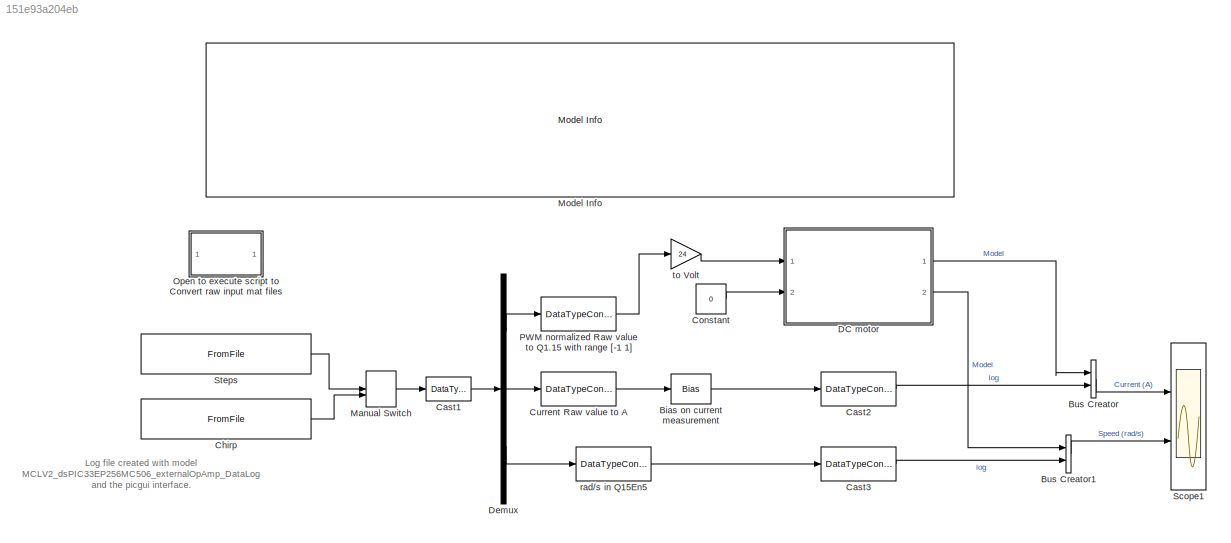
MODEL slx_151e93a204eb
KIND model
CONFIG AbsTol = auto
CONFIG EnableMultiTasking = off
CONFIG FixedStep = .00005
CONFIG MaxStep = auto
CONFIG MinStep = auto
CONFIG RelTol = 1e-3
CONFIG SampleTimeConstraint = Unconstrained
CONFIG Solver = FixedStepAuto
CONFIG SolverName = FixedStepAuto
CONFIG StartTime = 0.0
CONFIG StopTime = 60
BLOCK [Bias] Bias on current measurement
  Bias = 0.2
BLOCK [BusCreator] Bus Creator
  DisplayOption = bar
  InheritFromInputs = on
  Inputs = 2
  Ports = [2, 1]
BLOCK [BusCreator] Bus Creator1
  DisplayOption = bar
  InheritFromInputs = on
  Inputs = 2
  Ports = [2, 1]
BLOCK [DataTypeConversion] Cast1
  OutDataTypeStr = int16
  RndMeth = Floor
  SaturateOnIntegerOverflow = off
BLOCK [DataTypeConversion] Cast2
  OutDataTypeStr = double
  RndMeth = Floor
  SaturateOnIntegerOverflow = off
BLOCK [DataTypeConversion] Cast3
  OutDataTypeStr = double
  RndMeth = Floor
  SaturateOnIntegerOverflow = off
BLOCK [FromFile] Chirp
  FileName = Sim_2018_12_12_at_14h22_07s.mat
  SampleTime = .00005
BLOCK [Constant] Constant
  Value = 0
BLOCK [DataTypeConversion] Current Raw value to A
  ConvertRealWorld = Stored Integer (SI)
  OutDataTypeStr = fixdt(1,16,4.4/32768,0)
  RndMeth = Floor
  SaturateOnIntegerOverflow = off
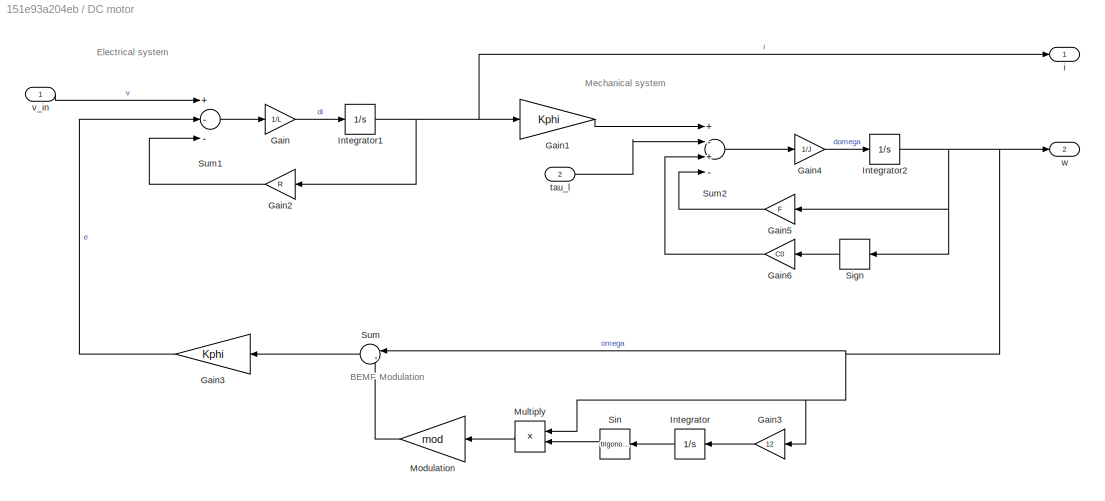
BLOCK [SubSystem] DC motor
  Ports = [2, 2]
  RequestExecContextInheritance = off
BLOCK [Gain] DC motor/Gain
  Gain = 1/L
  OutDataTypeStr = Inherit: Inherit via internal rule
  ParamDataTypeStr = Inherit: Inherit via internal rule
  SaturateOnIntegerOverflow = off
BLOCK [Gain] DC motor/Gain1
  Gain = Kphi
  OutDataTypeStr = Inherit: Inherit via internal rule
  ParamDataTypeStr = Inherit: Inherit via internal rule
  SaturateOnIntegerOverflow = off
BLOCK [Gain] DC motor/Gain2
  Gain = R
  OutDataTypeStr = Inherit: Inherit via internal rule
  ParamDataTypeStr = Inherit: Inherit via internal rule
  SaturateOnIntegerOverflow = off
BLOCK [Gain] DC motor/Gain3
  Gain = 12
  OutDataTypeStr = Inherit: Inherit via internal rule
  ParamDataTypeStr = Inherit: Inherit via internal rule
  SaturateOnIntegerOverflow = off
BLOCK [Gain] DC motor/Gain3  
  Gain = Kphi
  OutDataTypeStr = Inherit: Inherit via internal rule
  ParamDataTypeStr = Inherit: Inherit via internal rule
  SaturateOnIntegerOverflow = off
BLOCK [Gain] DC motor/Gain4
  Gain = 1/J
  OutDataTypeStr = Inherit: Inherit via internal rule
  ParamDataTypeStr = Inherit: Inherit via internal rule
  SaturateOnIntegerOverflow = off
BLOCK [Gain] DC motor/Gain5
  Gain = F
  OutDataTypeStr = Inherit: Inherit via internal rule
  ParamDataTypeStr = Inherit: Inherit via internal rule
  SaturateOnIntegerOverflow = off
BLOCK [Gain] DC motor/Gain6
  Gain = C0
  OutDataTypeStr = Inherit: Inherit via internal rule
  ParamDataTypeStr = Inherit: Inherit via internal rule
  SaturateOnIntegerOverflow = off
BLOCK [Integrator] DC motor/Integrator
  Ports = [1, 1]
  WrapState = on
BLOCK [Integrator] DC motor/Integrator1
  Ports = [1, 1]
BLOCK [Integrator] DC motor/Integrator2
  Ports = [1, 1]
BLOCK [Gain] DC motor/Modulation
  Gain = mod
  OutDataTypeStr = Inherit: Inherit via internal rule
  ParamDataTypeStr = Inherit: Inherit via internal rule
  SaturateOnIntegerOverflow = off
BLOCK [Product] DC motor/Multiply
  InputSameDT = off
  OutDataTypeStr = Inherit: Inherit via internal rule
  Ports = [2, 1]
  RndMeth = Floor
  SaturateOnIntegerOverflow = off
BLOCK [Signum] DC motor/Sign
BLOCK [Trigonometry] DC motor/Sin
  Ports = [1, 1]
BLOCK [Sum] DC motor/Sum
  IconShape = round
  InputSameDT = off
  Inputs = |++
  OutDataTypeStr = Inherit: Inherit via internal rule
  Ports = [2, 1]
  SaturateOnIntegerOverflow = off
BLOCK [Sum] DC motor/Sum1
  InputSameDT = off
  Inputs = +--
  OutDataTypeStr = Inherit: Inherit via internal rule
  Ports = [3, 1]
  SaturateOnIntegerOverflow = off
BLOCK [Sum] DC motor/Sum2
  InputSameDT = off
  Inputs = +-+-
  OutDataTypeStr = Inherit: Inherit via internal rule
  Ports = [4, 1]
  SaturateOnIntegerOverflow = off
BLOCK [Outport] DC motor/i
  IconDisplay = Port number
BLOCK [Inport] DC motor/tau_l
  IconDisplay = Port number
  Port = 2
BLOCK [Inport] DC motor/v_in
  IconDisplay = Port number
  SampleTime = 0
BLOCK [Outport] DC motor/w
  IconDisplay = Port number
  Port = 2
BLOCK [Demux] Demux
  DisplayOption = bar
  Outputs = 3
  Ports = [1, 3]
BLOCK [ManualSwitch] Manual Switch
  CurrentSetting = 0
BLOCK [Reference] Model Info  REF=simulink/Model-Wide
Utilities/Model Info
  Ports = []
  SourceBlock = simulink/Model-Wide\nUtilities/Model Info
  SourceProductBaseCode = SL
  SourceProductName = Simulink
  SourceType = CMBlock
BLOCK [SubSystem] Open to execute script to Convert raw input mat files
  LoadFcn = sim2mat();
  OpenFcn = sim2mat();
  Ports = []
  RequestExecContextInheritance = off
BLOCK [DataTypeConversion] PWM normalized Raw value to Q1.15 with range [-1 1]
  ConvertRealWorld = Stored Integer (SI)
  OutDataTypeStr = fixdt(1,16,15)
  RndMeth = Floor
  SaturateOnIntegerOverflow = off
BLOCK [Scope] Scope1
  Floating = off
  NumInputPorts = 2
  Ports = [2]
  ScopeSpecificationString = Simulink.scopes.TimeScopeBlockCfg('CurrentConfiguration', extmgr.ConfigurationSet(extmgr.Configuration('Core','General UI',true),extmgr.Configuration('Core','Source UI',true),extmgr.Configuration('Sources','WiredSimulink',true,'DataLoggingVariableName','ScopeData1'),extmgr.Configuration('Visuals','Time Domain',true,'SerializedDisplays',{struct('MinYLimReal','-16.82205','MaxYLimReal','12.11304','YL...<+2179ch>
BLOCK [FromFile] Steps
  FileName = Sim_2018_12_12_at_14h19_56s.mat
  SampleTime = .00005
BLOCK [DataTypeConversion] rad//s in Q15En5
  ConvertRealWorld = Stored Integer (SI)
  OutDataTypeStr = fixdt(1,16,5)
  RndMeth = Floor
  SaturateOnIntegerOverflow = off
BLOCK [Gain] to Volt
  Gain = 24
  OutDataTypeStr = double
  ParamDataTypeStr = Inherit: Inherit via internal rule
  SaturateOnIntegerOverflow = off
ANNOTATION (root): Log file created with model MCLV2_dsPIC33EP256MC506_externalOpAmp_DataLog and the picgui interface.
ANNOTATION DC motor: BEMF Modulation
ANNOTATION DC motor: Electrical system
ANNOTATION DC motor: Mechanical system
LINE Bias on current measurement:1 -> Cast2:1
LINE Bus Creator1:1 -> Scope1:2
LINE Bus Creator:1 -> Scope1:1
LINE Cast1:1 -> Demux:1
LINE Cast2:1 -> Bus Creator:2
LINE Cast3:1 -> Bus Creator1:2
LINE Chirp:1 -> Manual Switch:2
LINE Constant:1 -> DC motor:2
LINE Current Raw value to A:1 -> Bias on current measurement:1
LINE DC motor/Gain1:1 -> DC motor/Sum2:1
LINE DC motor/Gain2:1 -> DC motor/Sum1:3
LINE DC motor/Gain3  :1 -> DC motor/Sum1:2
LINE DC motor/Gain3:1 -> DC motor/Integrator:1
LINE DC motor/Gain4:1 -> DC motor/Integrator2:1
LINE DC motor/Gain5:1 -> DC motor/Sum2:4
LINE DC motor/Gain6:1 -> DC motor/Sum2:3
LINE DC motor/Gain:1 -> DC motor/Integrator1:1
NET DC motor/Integrator1:1 -> DC motor/Gain1:1, DC motor/Gain2:1, DC motor/i:1
NET DC motor/Integrator2:1 -> DC motor/Gain3:1, DC motor/Gain5:1, DC motor/Multiply:1, DC motor/Sign:1, DC motor/Sum:1, DC motor/w:1
LINE DC motor/Integrator:1 -> DC motor/Sin:1
LINE DC motor/Modulation:1 -> DC motor/Sum:2
LINE DC motor/Multiply:1 -> DC motor/Modulation:1
LINE DC motor/Sign:1 -> DC motor/Gain6:1
LINE DC motor/Sin:1 -> DC motor/Multiply:2
LINE DC motor/Sum1:1 -> DC motor/Gain:1
LINE DC motor/Sum2:1 -> DC motor/Gain4:1
LINE DC motor/Sum:1 -> DC motor/Gain3  :1
LINE DC motor/tau_l:1 -> DC motor/Sum2:2
LINE DC motor/v_in:1 -> DC motor/Sum1:1
LINE DC motor:1 -> Bus Creator:1
LINE DC motor:2 -> Bus Creator1:1
LINE Demux:1 -> PWM normalized Raw value to Q1.15 with range [-1 1]:1
LINE Demux:2 -> Current Raw value to A:1
LINE Demux:3 -> rad//s in Q15En5:1
LINE Manual Switch:1 -> Cast1:1
LINE PWM normalized Raw value to Q1.15 with range [-1 1]:1 -> to Volt:1
LINE Steps:1 -> Manual Switch:1
LINE rad//s in Q15En5:1 -> Cast3:1
LINE to Volt:1 -> DC motor:1
note: NET lines group one-source signal fan-out (src -> all destinations, sorted); 1:1 wires keep LINE
